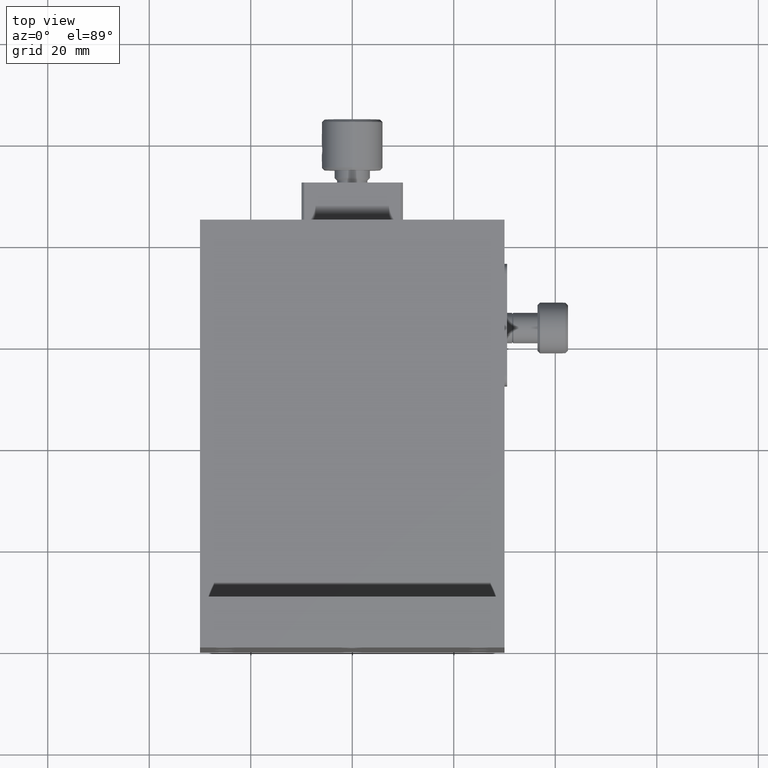
[diagram: clean part render]
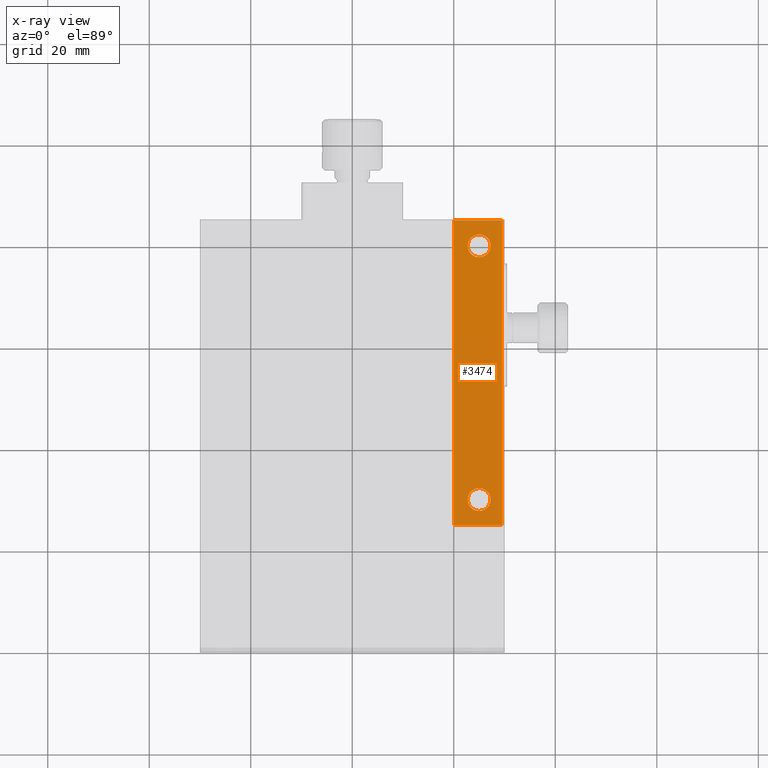
[diagram: x-ray — body ghosted, one internal face saturated and labeled with its STEP entity id]
A machine part, top view, then the same camera in x-ray: the body is ghosted and one INTERNAL B-rep face — a face not visible from any outside direction — is saturated and labeled: STEP entity #3474.
In plain terms, the highlighted planar face has unit normal (0, 0, -1).
Its self-contained STEP definition (entity closure, byte-faithful):
#89 = VECTOR ( 'NONE', #4937, 1000.000000000000000 ) ;
#114 = DIRECTION ( 'NONE',  ( -0.000000000000000000, -0.000000000000000000, 1.000000000000000000 ) ) ;
#266 = VERTEX_POINT ( 'NONE', #5322 ) ;
#409 = PLANE ( 'NONE',  #3628 ) ;
#474 = EDGE_CURVE ( 'NONE', #2176, #2176, #2179, .T. ) ;
#485 = ORIENTED_EDGE ( 'NONE', *, *, #474, .F. ) ;
#768 = CIRCLE ( 'NONE', #1246, 2.250000000000001776 ) ;
#1217 = LINE ( 'NONE', #3435, #3658 ) ;
#1223 = DIRECTION ( 'NONE',  ( 0.000000000000000000, -1.000000000000000000, -0.000000000000000000 ) ) ;
#1246 = AXIS2_PLACEMENT_3D ( 'NONE', #5261, #114, #2492 ) ;
#1336 = EDGE_CURVE ( 'NONE', #6879, #6879, #768, .T. ) ;
#1516 = DIRECTION ( 'NONE',  ( -0.000000000000000000, -1.000000000000000000, -0.000000000000000000 ) ) ;
#1569 = EDGE_CURVE ( 'NONE', #2429, #266, #3697, .T. ) ;
#1573 = CARTESIAN_POINT ( 'NONE',  ( 20.00000000000000000, 84.99999999999998579, -1.420500002347057884E-14 ) ) ;
#1829 = EDGE_CURVE ( 'NONE', #2429, #3810, #3038, .T. ) ;
#2032 = CARTESIAN_POINT ( 'NONE',  ( 20.00000000000000000, 84.99999999999998579, -1.421085471520200056E-14 ) ) ;
#2076 = VECTOR ( 'NONE', #1223, 1000.000000000000000 ) ;
#2079 = CARTESIAN_POINT ( 'NONE',  ( 29.50000000000000355, 84.99999999999998579, -1.421085471520200056E-14 ) ) ;
#2176 = VERTEX_POINT ( 'NONE', #7116 ) ;
#2179 = CIRCLE ( 'NONE', #6290, 2.250000000000001776 ) ;
#2306 = ORIENTED_EDGE ( 'NONE', *, *, #4352, .F. ) ;
#2429 = VERTEX_POINT ( 'NONE', #1573 ) ;
#2484 = CARTESIAN_POINT ( 'NONE',  ( 20.00000000000000000, 84.99999999999998579, -1.420304845956010809E-14 ) ) ;
#2492 = DIRECTION ( 'NONE',  ( -1.000000000000000000, 0.000000000000000000, 0.000000000000000000 ) ) ;
#2881 = EDGE_LOOP ( 'NONE', ( #2306, #3564, #4792, #2928 ) ) ;
#2928 = ORIENTED_EDGE ( 'NONE', *, *, #5099, .T. ) ;
#3035 = DIRECTION ( 'NONE',  ( -1.000000000000000000, 0.000000000000000000, 0.000000000000000000 ) ) ;
#3038 = LINE ( 'NONE', #2484, #2076 ) ;
#3356 = CARTESIAN_POINT ( 'NONE',  ( 29.50000000000000355, 25.00000000000000000, -1.421085471520200056E-14 ) ) ;
#3435 = CARTESIAN_POINT ( 'NONE',  ( 0.000000000000000000, 25.00000000000000000, -1.420304845956010177E-14 ) ) ;
#3474 = ADVANCED_FACE ( 'NONE', ( #7145, #7072, #5427 ), #409, .F. ) ;
#3547 = EDGE_LOOP ( 'NONE', ( #5802 ) ) ;
#3564 = ORIENTED_EDGE ( 'NONE', *, *, #1569, .F. ) ;
#3628 = AXIS2_PLACEMENT_3D ( 'NONE', #2032, #3787, #4268 ) ;
#3658 = VECTOR ( 'NONE', #3935, 1000.000000000000000 ) ;
#3697 = LINE ( 'NONE', #4281, #89 ) ;
#3787 = DIRECTION ( 'NONE',  ( 0.000000000000000000, 0.000000000000000000, -1.000000000000000000 ) ) ;
#3810 = VERTEX_POINT ( 'NONE', #6556 ) ;
#3935 = DIRECTION ( 'NONE',  ( 1.000000000000000000, 0.000000000000000000, -0.000000000000000000 ) ) ;
#4054 = DIRECTION ( 'NONE',  ( -0.000000000000000000, -0.000000000000000000, 1.000000000000000000 ) ) ;
#4076 = EDGE_LOOP ( 'NONE', ( #485 ) ) ;
#4268 = DIRECTION ( 'NONE',  ( -1.000000000000000000, 0.000000000000000000, -0.000000000000000000 ) ) ;
#4281 = CARTESIAN_POINT ( 'NONE',  ( 0.000000000000000000, 84.99999999999998579, -1.420304845956010177E-14 ) ) ;
#4352 = EDGE_CURVE ( 'NONE', #266, #5541, #7086, .T. ) ;
#4792 = ORIENTED_EDGE ( 'NONE', *, *, #1829, .T. ) ;
#4937 = DIRECTION ( 'NONE',  ( 1.000000000000000000, 0.000000000000000000, -0.000000000000000000 ) ) ;
#5099 = EDGE_CURVE ( 'NONE', #3810, #5541, #1217, .T. ) ;
#5170 = CARTESIAN_POINT ( 'NONE',  ( 22.75000000000000000, 30.00000000000000000, 0.000000000000000000 ) ) ;
#5261 = CARTESIAN_POINT ( 'NONE',  ( 25.00000000000000000, 30.00000000000000000, 0.000000000000000000 ) ) ;
#5322 = CARTESIAN_POINT ( 'NONE',  ( 29.50000000000000000, 84.99999999999998579, -1.323470684173183271E-14 ) ) ;
#5427 = FACE_BOUND ( 'NONE', #4076, .T. ) ;
#5541 = VERTEX_POINT ( 'NONE', #3356 ) ;
#5764 = CARTESIAN_POINT ( 'NONE',  ( 25.00000000000000000, 80.00000000000000000, 0.000000000000000000 ) ) ;
#5802 = ORIENTED_EDGE ( 'NONE', *, *, #1336, .F. ) ;
#6290 = AXIS2_PLACEMENT_3D ( 'NONE', #5764, #4054, #3035 ) ;
#6556 = CARTESIAN_POINT ( 'NONE',  ( 20.00000000000000000, 25.00000000000000000, -1.420500002347057884E-14 ) ) ;
#6879 = VERTEX_POINT ( 'NONE', #5170 ) ;
#7072 = FACE_BOUND ( 'NONE', #3547, .T. ) ;
#7086 = LINE ( 'NONE', #2079, #7139 ) ;
#7116 = CARTESIAN_POINT ( 'NONE',  ( 22.75000000000000000, 80.00000000000000000, 0.000000000000000000 ) ) ;
#7139 = VECTOR ( 'NONE', #1516, 1000.000000000000000 ) ;
#7145 = FACE_OUTER_BOUND ( 'NONE', #2881, .T. ) ;